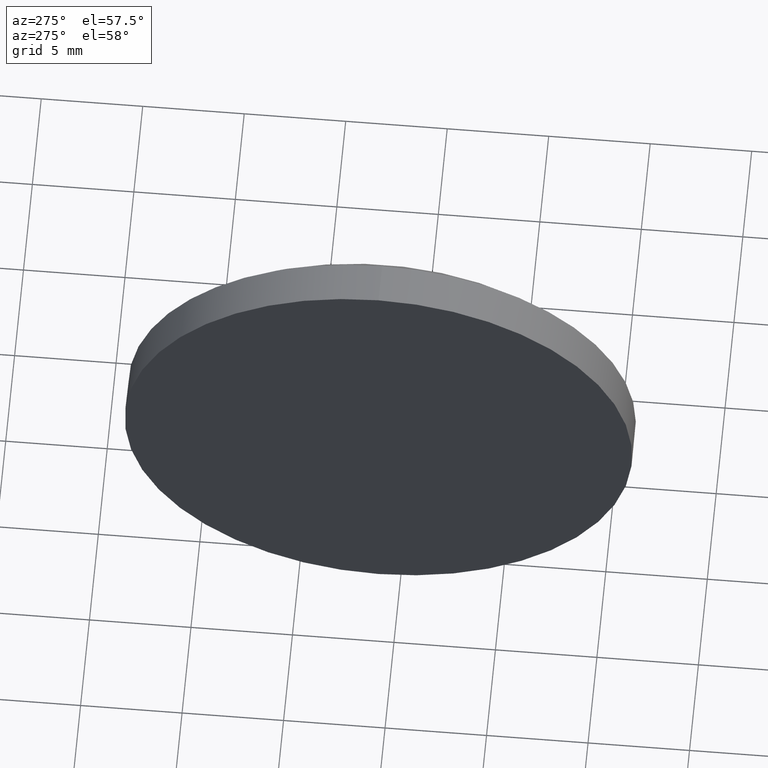
[diagram: clean part render]
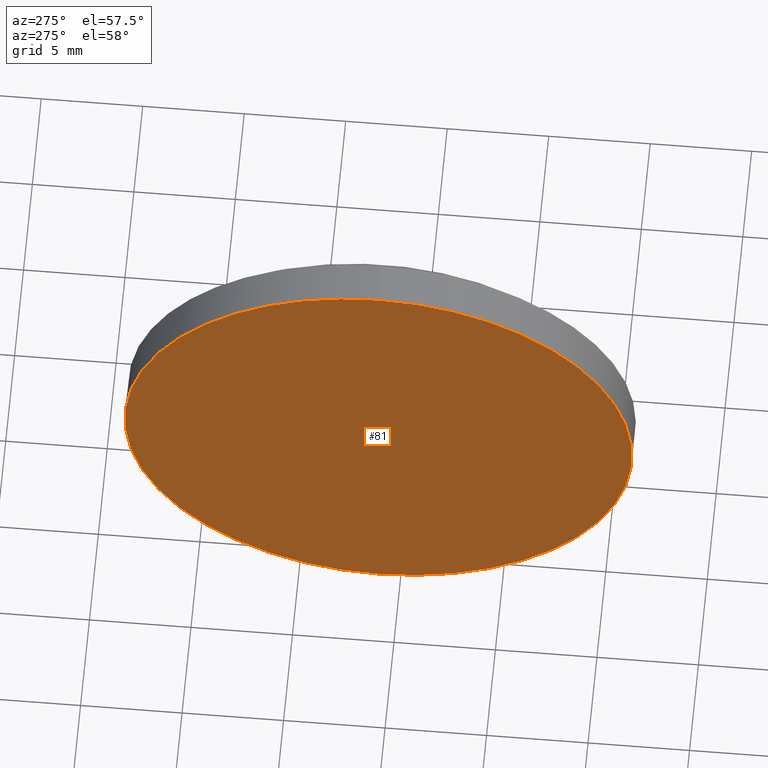
[diagram: same view with one face highlighted and labeled with its STEP entity id]
A machine part, auxiliary view. The second image highlights one B-rep face of the part: STEP entity #81.
In plain terms, the highlighted planar face has unit normal (1, 0, 0).
Its self-contained STEP definition (entity closure, byte-faithful):
#7 = CARTESIAN_POINT ( 'NONE',  ( 563.5535889143861800, 156.0724403089788000, 12.50000000000001100 ) ) ;
#13 = ORIENTED_EDGE ( 'NONE', *, *, #32, .T. ) ;
#21 = EDGE_LOOP ( 'NONE', ( #103, #13 ) ) ;
#32 = EDGE_CURVE ( 'NONE', #41, #145, #111, .T. ) ;
#41 = VERTEX_POINT ( 'NONE', #86 ) ;
#54 = CARTESIAN_POINT ( 'NONE',  ( 563.5535889143861800, 156.0724403089788000, 0.0000000000000000000 ) ) ;
#63 = CARTESIAN_POINT ( 'NONE',  ( 563.5535889143861800, 156.0724403089788000, 0.0000000000000000000 ) ) ;
#69 = DIRECTION ( 'NONE',  ( 1.000000000000000000, 0.0000000000000000000, 0.0000000000000000000 ) ) ;
#70 = DIRECTION ( 'NONE',  ( -1.000000000000000000, -0.0000000000000000000, -0.0000000000000000000 ) ) ;
#74 = AXIS2_PLACEMENT_3D ( 'NONE', #63, #119, #159 ) ;
#81 = ADVANCED_FACE ( 'NONE', ( #96 ), #128, .F. ) ;
#86 = CARTESIAN_POINT ( 'NONE',  ( 563.5535889143861800, 156.0724403089788000, -12.50000000000001100 ) ) ;
#90 = AXIS2_PLACEMENT_3D ( 'NONE', #120, #69, #163 ) ;
#96 = FACE_OUTER_BOUND ( 'NONE', #21, .T. ) ;
#103 = ORIENTED_EDGE ( 'NONE', *, *, #166, .T. ) ;
#111 = CIRCLE ( 'NONE', #74, 12.50000000000001100 ) ;
#119 = DIRECTION ( 'NONE',  ( -1.000000000000000000, -0.0000000000000000000, -0.0000000000000000000 ) ) ;
#120 = CARTESIAN_POINT ( 'NONE',  ( 563.5535889143861800, 156.0724403089788000, 0.0000000000000000000 ) ) ;
#122 = DIRECTION ( 'NONE',  ( 0.0000000000000000000, 0.0000000000000000000, 1.000000000000000000 ) ) ;
#128 = PLANE ( 'NONE',  #90 ) ;
#134 = AXIS2_PLACEMENT_3D ( 'NONE', #54, #70, #122 ) ;
#145 = VERTEX_POINT ( 'NONE', #7 ) ;
#148 = CIRCLE ( 'NONE', #134, 12.50000000000001100 ) ;
#159 = DIRECTION ( 'NONE',  ( 0.0000000000000000000, 0.0000000000000000000, 1.000000000000000000 ) ) ;
#163 = DIRECTION ( 'NONE',  ( 0.0000000000000000000, 0.0000000000000000000, -1.000000000000000000 ) ) ;
#166 = EDGE_CURVE ( 'NONE', #145, #41, #148, .T. ) ;